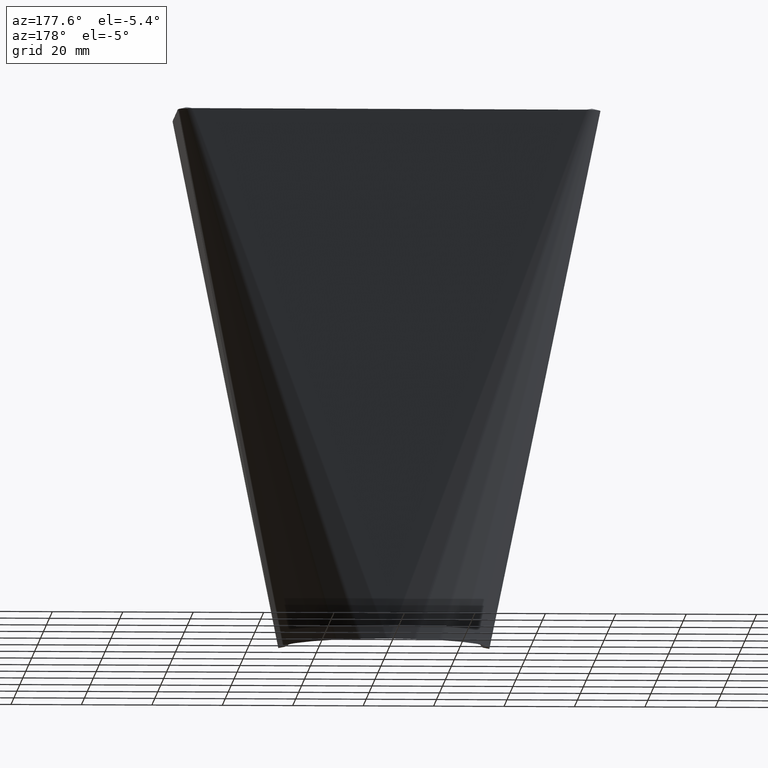
[diagram: clean part render]
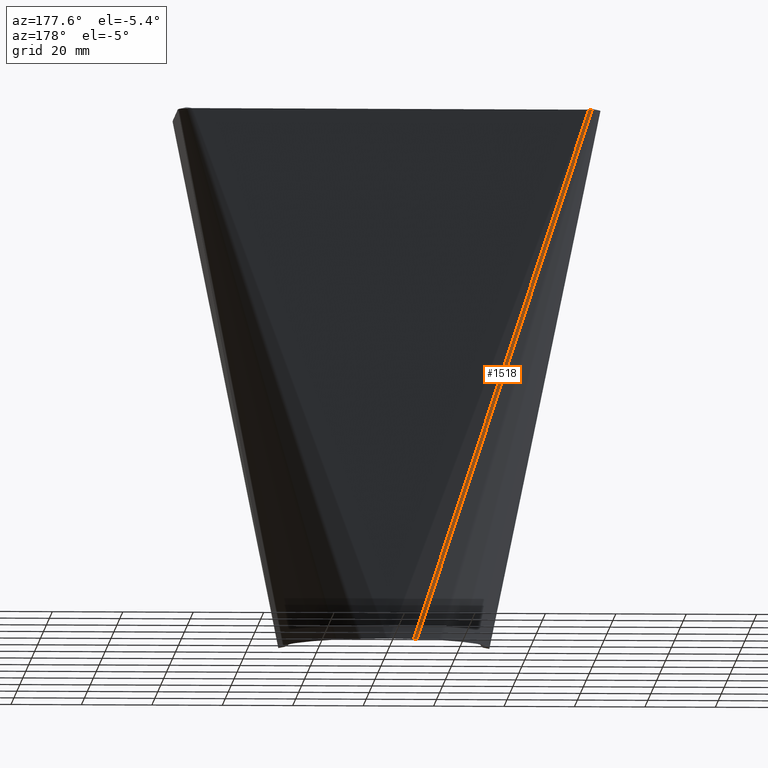
[diagram: same view with one face highlighted and labeled with its STEP entity id]
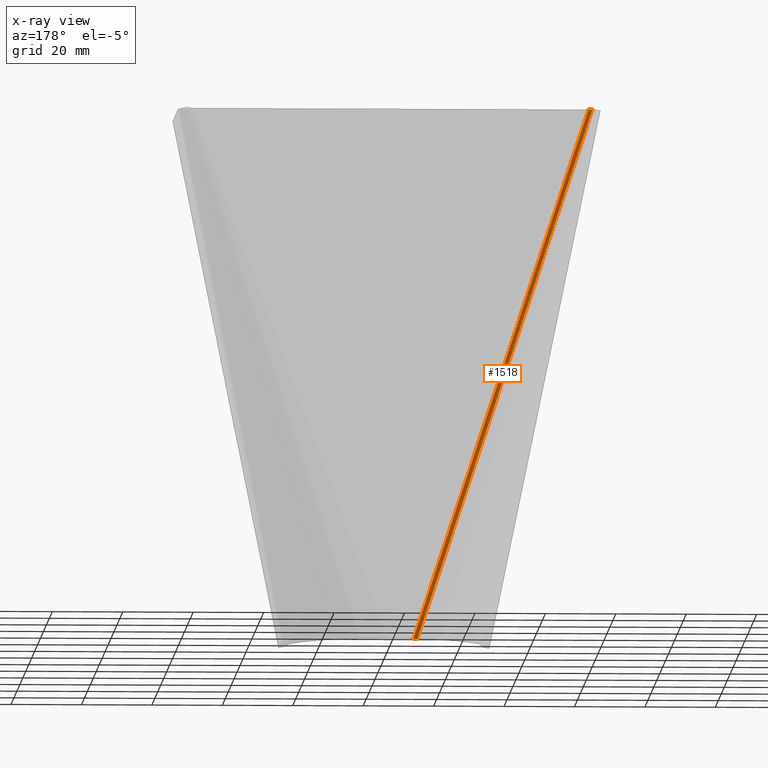
[diagram: x-ray of the same camera — body ghosted, the highlighted face saturated]
A machine part, auxiliary view. The second image highlights one B-rep face of the part: STEP entity #1518.
The next image is the same camera in x-ray: the body ghosted, the highlighted face saturated — about 0% of this face is hidden behind the body in this view.
In plain terms, the highlighted cylindrical surface (edge-blend (fillet) strip) has radius 4 mm, axis along (-0.3113, 0.0689, 0.9478).
Its self-contained STEP definition (entity closure, byte-faithful):
#129=ELLIPSE($,#1683,4.22030160276003,4.);
#130=ELLIPSE($,#1684,4.22030160276003,4.);
#159=CYLINDRICAL_SURFACE($,#1682,4.);
#219=FACE_OUTER_BOUND($,#328,.T.);
#328=EDGE_LOOP($,(#1204,#1205,#1206,#1207));
#473=LINE($,#2432,#621);
#475=LINE($,#2438,#623);
#621=VECTOR($,#2026,158.261310103501);
#623=VECTOR($,#2032,158.261310103501);
#763=VERTEX_POINT($,#2425);
#765=VERTEX_POINT($,#2431);
#766=VERTEX_POINT($,#2435);
#767=VERTEX_POINT($,#2437);
#929=EDGE_CURVE($,#763,#765,#473,.T.);
#931=EDGE_CURVE($,#766,#763,#129,.T.);
#932=EDGE_CURVE($,#766,#767,#475,.T.);
#933=EDGE_CURVE($,#765,#767,#130,.T.);
#1204=ORIENTED_EDGE($,*,*,#931,.F.);
#1205=ORIENTED_EDGE($,*,*,#932,.T.);
#1206=ORIENTED_EDGE($,*,*,#933,.F.);
#1207=ORIENTED_EDGE($,*,*,#929,.F.);
#1518=ADVANCED_FACE($,(#219),#159,.T.);
#1682=AXIS2_PLACEMENT_3D($,#2434,#2028,#2029);
#1683=AXIS2_PLACEMENT_3D($,#2436,#2030,#2031);
#1684=AXIS2_PLACEMENT_3D($,#2439,#2033,#2034);
#2026=DIRECTION($,(0.311326542750861,-0.0689331474274456,-0.947799559487417));
#2028=DIRECTION('center_axis',(-0.311326542750861,0.0689331474274456,0.947799559487418));
#2029=DIRECTION('ref_axis',(-0.129671823516586,0.984955286780706,-0.114229161025636));
#2030=DIRECTION('center_axis',(0.,0.,1.));
#2031=DIRECTION('ref_axis',(-0.976353153367664,0.216181682639902,3.0700981693717E-017));
#2032=DIRECTION($,(0.311326542750861,-0.0689331474274456,-0.947799559487417));
#2033=DIRECTION('center_axis',(-1.22464679914735E-016,0.,-1.));
#2034=DIRECTION('ref_axis',(-0.976353153367664,0.216181682639902,9.7992934705908E-017));
#2425=CARTESIAN_POINT('',(-57.5548054654658,39.6721290489369,7.57258293137332E-018));
#2431=CARTESIAN_POINT('',(-8.2838589397209,28.7626788275116,-150.));
#2432=CARTESIAN_POINT($,(-57.5548054654658,39.6721290489369,7.57258293137332E-018));
#2434=CARTESIAN_POINT('Origin',(-56.0060634837026,36.0333797630815,0.618436835572961));
#2435=CARTESIAN_POINT('',(-56.4716957596572,39.9614536002803,0.));
#2436=CARTESIAN_POINT('Origin',(-55.8029236953355,35.9884010572629,-6.93889390390723E-017));
#2437=CARTESIAN_POINT('',(-7.20074923391231,29.0520033788549,-150.));
#2438=CARTESIAN_POINT($,(-56.4716957596572,39.9614536002803,5.23925194543007E-015));
#2439=CARTESIAN_POINT('Origin',(-6.53197716959065,25.0789508358376,-150.));